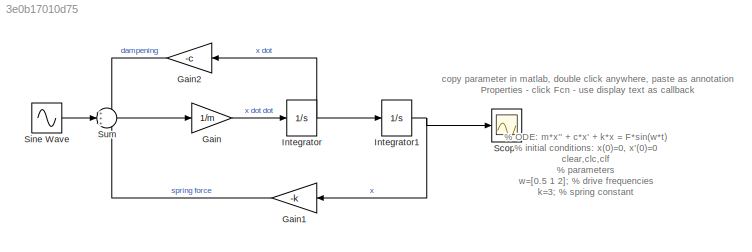
MODEL slx_3e0b17010d75
KIND model
CONFIG AbsTol = auto
CONFIG EnableMultiTasking = on
CONFIG FixedStep = auto
CONFIG MaxStep = auto
CONFIG MinStep = auto
CONFIG RelTol = 1e-3
CONFIG SampleTimeConstraint = Unconstrained
CONFIG SolverName = VariableStepAuto
CONFIG StartTime = 0.0
CONFIG StopTime = te
BLOCK [Gain] Gain
  Gain = 1/m
BLOCK [Gain] Gain1
  Gain = -k
  NameLocation = top
BLOCK [Gain] Gain2
  Gain = -c
  NameLocation = top
BLOCK [Integrator] Integrator
  InitialCondition = x0(2)
BLOCK [Integrator] Integrator1
  InitialCondition = x0(1)
BLOCK [Scope] Scope
  Floating = off
  NumInputPorts = 2
  ScopeSpecificationString = Simulink.scopes.TimeScopeBlockCfg('CurrentConfiguration', extmgr.ConfigurationSet(extmgr.Configuration('Core','General UI',true),extmgr.Configuration('Core','Source UI',true),extmgr.Configuration('Sources','WiredSimulink',true,'DataLogging',true),extmgr.Configuration('Visuals','Time Domain',true,'SerializedDisplays',{struct('MinYLimReal','-1.24918','MaxYLimReal','1.24943','YLabelReal','','MinYLimM...<+1548ch>
BLOCK [Sin] Sine Wave
  Amplitude = F
  Frequency = w
  SampleTime = 0
BLOCK [Sum] Sum
  Inputs = +++
ANNOTATION (root): % ODE: m*x'' + c*x' + k*x = F*sin(w*t) % initial conditions: x(0)=0, x'(0)=0 clear,clc,clf % parameters w=[0.5 1 2]; % drive frequencies k=3; % spring constant m=3; % mass c=1; % damping constant F=1; % force amplitude te=50; % simulation time x0=[0 0]; % initial conditions x(1)=x(t) and x(2)=x'(t)
ANNOTATION (root): copy parameter in matlab, double click anywhere, paste as annotation Properties - click Fcn - use display text as callback
LINE Gain1:1 -> Sum:3
LINE Gain2:1 -> Sum:1
LINE Gain:1 -> Integrator:1
NET Integrator1:1 -> Gain1:1, Scope:1
NET Integrator:1 -> Gain2:1, Integrator1:1
LINE Sine Wave:1 -> Sum:2
LINE Sum:1 -> Gain:1
note: NET lines group one-source signal fan-out (src -> all destinations, sorted); 1:1 wires keep LINE
